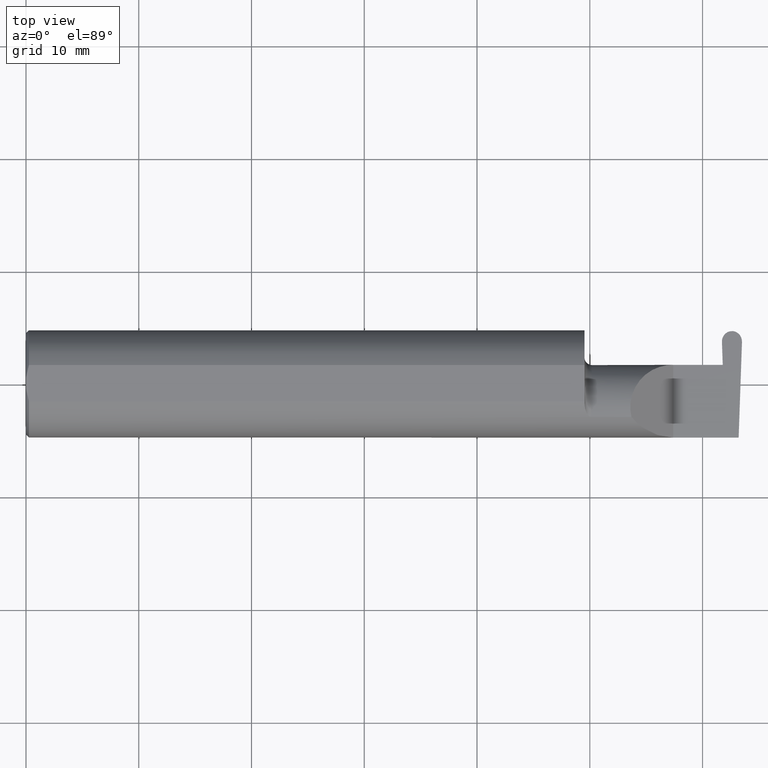
[diagram: clean part render]
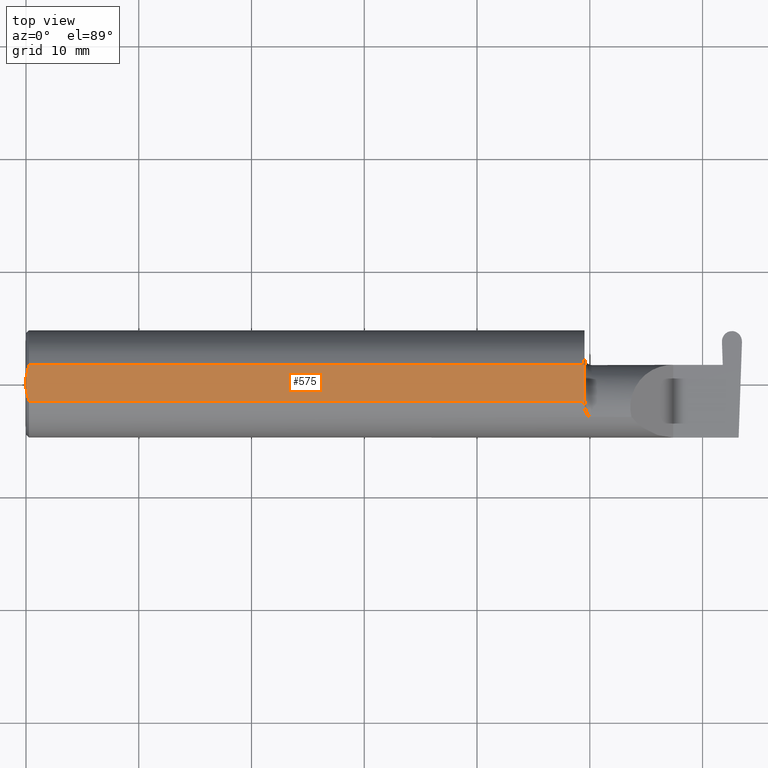
[diagram: same view with one face highlighted and labeled with its STEP entity id]
A machine part, top view. The second image highlights one B-rep face of the part: STEP entity #575.
In plain terms, the highlighted planar face has unit normal (0, 0, 1).
Its self-contained STEP definition (entity closure, byte-faithful):
#23 = EDGE_CURVE ( 'NONE', #539, #362, #72, .T. ) ;
#35 = CARTESIAN_POINT ( 'NONE',  ( 0.000000000000000000, 0.06325108694718235836, 0.1763499999999999235 ) ) ;
#62 = VERTEX_POINT ( 'NONE', #489 ) ;
#64 = CARTESIAN_POINT ( 'NONE',  ( 1.949999999999999956, -0.06325108694718283020, 0.1763499999999999235 ) ) ;
#72 = LINE ( 'NONE', #288, #177 ) ;
#90 = AXIS2_PLACEMENT_3D ( 'NONE', #637, #537, #586 ) ;
#96 = EDGE_CURVE ( 'NONE', #362, #62, #561, .T. ) ;
#107 = LINE ( 'NONE', #661, #315 ) ;
#112 = VECTOR ( 'NONE', #541, 39.37007874015748143 ) ;
#120 = CARTESIAN_POINT ( 'NONE',  ( 0.009999999999999346217, -0.06325108694718235836, 0.1763499999999999235 ) ) ;
#140 = CARTESIAN_POINT ( 'NONE',  ( 0.009999999999999346217, -0.06325108694718235836, 0.1763499999999999235 ) ) ;
#144 = CARTESIAN_POINT ( 'NONE',  ( 0.000000000000000000, 0.01880691362239451242, 0.1763499999999999235 ) ) ;
#173 = VERTEX_POINT ( 'NONE', #64 ) ;
#177 = VECTOR ( 'NONE', #414, 39.37007874015748143 ) ;
#179 = EDGE_CURVE ( 'NONE', #441, #173, #107, .T. ) ;
#195 = DIRECTION ( 'NONE',  ( -3.558239494867688555E-17, 1.000000000000000000, 0.000000000000000000 ) ) ;
#210 = CARTESIAN_POINT ( 'NONE',  ( 0.009999999999999346217, 0.06325108694718235836, 0.1763499999999999235 ) ) ;
#233 = EDGE_CURVE ( 'NONE', #441, #539, #536, .T. ) ;
#251 = CARTESIAN_POINT ( 'NONE',  ( 0.005155213631852355663, 0.04890080824240217866, 0.1763499999999999235 ) ) ;
#273 = VERTEX_POINT ( 'NONE', #451 ) ;
#288 = CARTESIAN_POINT ( 'NONE',  ( 0.000000000000000000, 0.1873499999999998500, 0.1763499999999999235 ) ) ;
#297 = CARTESIAN_POINT ( 'NONE',  ( 1.949999999999999956, 0.1873499999999998222, 0.1763499999999999235 ) ) ;
#300 = ORIENTED_EDGE ( 'NONE', *, *, #233, .F. ) ;
#310 = ORIENTED_EDGE ( 'NONE', *, *, #23, .F. ) ;
#315 = VECTOR ( 'NONE', #330, 39.37007874015748143 ) ;
#330 = DIRECTION ( 'NONE',  ( 1.000000000000000000, 0.000000000000000000, 0.000000000000000000 ) ) ;
#340 = CARTESIAN_POINT ( 'NONE',  ( 0.000000000000000000, 0.01880691362239451242, 0.1763499999999999235 ) ) ;
#347 = EDGE_CURVE ( 'NONE', #173, #273, #620, .T. ) ;
#362 = VERTEX_POINT ( 'NONE', #340 ) ;
#376 = LINE ( 'NONE', #35, #112 ) ;
#414 = DIRECTION ( 'NONE',  ( -0.000000000000000000, 1.000000000000000000, -0.000000000000000000 ) ) ;
#423 = FACE_OUTER_BOUND ( 'NONE', #491, .T. ) ;
#435 = VECTOR ( 'NONE', #195, 39.37007874015748143 ) ;
#441 = VERTEX_POINT ( 'NONE', #140 ) ;
#451 = CARTESIAN_POINT ( 'NONE',  ( 1.949999999999999956, 0.06325108694718235836, 0.1763499999999999235 ) ) ;
#476 = PLANE ( 'NONE',  #90 ) ;
#482 = CARTESIAN_POINT ( 'NONE',  ( 0.000000000000000000, -0.01880691362239451242, 0.1763499999999999235 ) ) ;
#489 = CARTESIAN_POINT ( 'NONE',  ( 0.009999999999999346217, 0.06325108694718235836, 0.1763499999999999235 ) ) ;
#490 = EDGE_CURVE ( 'NONE', #273, #62, #376, .T. ) ;
#491 = EDGE_LOOP ( 'NONE', ( #496, #510, #589, #570, #310, #300 ) ) ;
#495 = CARTESIAN_POINT ( 'NONE',  ( 0.001595548104417217512, -0.03385300050298979679, 0.1763499999999999235 ) ) ;
#496 = ORIENTED_EDGE ( 'NONE', *, *, #179, .T. ) ;
#501 = CARTESIAN_POINT ( 'NONE',  ( 0.005151108632379595466, -0.04888864921576189376, 0.1763499999999999235 ) ) ;
#510 = ORIENTED_EDGE ( 'NONE', *, *, #347, .T. ) ;
#536 = B_SPLINE_CURVE_WITH_KNOTS ( 'NONE', 3,
 ( #120, #501, #495, #601 ),
 .UNSPECIFIED., .F., .F.,
 ( 4, 4 ),
 ( 0.009771445421851449736, 0.01092787937989102981 ),
 .UNSPECIFIED. ) ;
#537 = DIRECTION ( 'NONE',  ( 0.000000000000000000, 0.000000000000000000, 1.000000000000000000 ) ) ;
#539 = VERTEX_POINT ( 'NONE', #482 ) ;
#541 = DIRECTION ( 'NONE',  ( -1.000000000000000000, -0.000000000000000000, -0.000000000000000000 ) ) ;
#561 = B_SPLINE_CURVE_WITH_KNOTS ( 'NONE', 3,
 ( #144, #692, #251, #210 ),
 .UNSPECIFIED., .F., .F.,
 ( 4, 4 ),
 ( 0.01188664626022267051, 0.01304646959483758001 ),
 .UNSPECIFIED. ) ;
#570 = ORIENTED_EDGE ( 'NONE', *, *, #96, .F. ) ;
#575 = ADVANCED_FACE ( 'NONE', ( #423 ), #476, .T. ) ;
#586 = DIRECTION ( 'NONE',  ( 1.000000000000000000, 0.000000000000000000, -0.000000000000000000 ) ) ;
#589 = ORIENTED_EDGE ( 'NONE', *, *, #490, .T. ) ;
#601 = CARTESIAN_POINT ( 'NONE',  ( 0.000000000000000000, -0.01880691362239451242, 0.1763499999999999235 ) ) ;
#620 = LINE ( 'NONE', #297, #435 ) ;
#637 = CARTESIAN_POINT ( 'NONE',  ( 2.876828993045917215, 0.1873499999999998500, 0.1763499999999999235 ) ) ;
#661 = CARTESIAN_POINT ( 'NONE',  ( 0.000000000000000000, -0.06325108694718235836, 0.1763499999999999235 ) ) ;
#692 = CARTESIAN_POINT ( 'NONE',  ( 0.001616639753276218755, 0.03405189565400963680, 0.1763499999999999235 ) ) ;